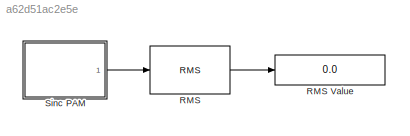
MODEL slx_a62d51ac2e5e
KIND model
BLOCK [Reference] RMS  REF=dspstat3/RMS
  InputProcessing = Elements as channels (sample based)
  Ports = [1, 1]
  SourceBlock = dspstat3/RMS
  SourceType = RMS
  UserDataPersistent = on
  dimension = 1
  directionMode = Each column
  reset_popup = None
  run = on
  treatSBRowAsCol = on
BLOCK [Display] RMS Value
  Decimation = 1
  Ports = [1]
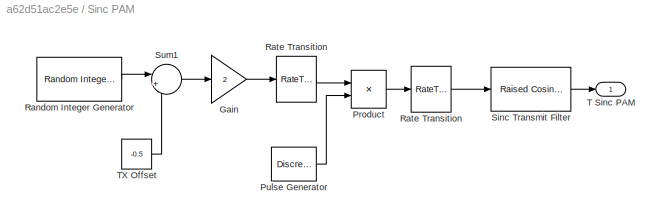
BLOCK [SubSystem] Sinc PAM
  Ports = [0, 1]
  RequestExecContextInheritance = off
BLOCK [RateTransition] Sinc PAM/ Rate Transition
  OutPortSampleTime = 1e-3
BLOCK [Gain] Sinc PAM/Gain
  Gain = 2
  OutDataTypeStr = Inherit: Inherit via internal rule
  ParamDataTypeStr = Inherit: Inherit via internal rule
  SaturateOnIntegerOverflow = off
BLOCK [Product] Sinc PAM/Product
  InputSameDT = off
  OutDataTypeStr = Inherit: Inherit via internal rule
  Ports = [2, 1]
  SaturateOnIntegerOverflow = off
BLOCK [DiscretePulseGenerator] Sinc PAM/Pulse Generator
  Period = 1e-3
  Ports = [0, 1]
  PulseType = Time based
  PulseWidth = 2
BLOCK [Reference] Sinc PAM/Random Integer Generator  REF=commrandsrc2/Random Integer
Generator
  Ports = [0, 1]
  SourceBlock = commrandsrc2/Random Integer\nGenerator
  SourceType = Random Integer Generator
  Ts = 1e-3
  frameBased = off
  mul = 2
  orient = off
  outDataType = double
  sampPerFrame = 50
  seed = randseed
BLOCK [RateTransition] Sinc PAM/Rate Transition
  OutPortSampleTime = 2e-5
BLOCK [Reference] Sinc PAM/Sinc Transmit Filter  REF=commfilt2/Raised Cosine
Transmit Filter
  D = 4
  InputProcessing = Inherited (this choice will be removed - see release notes)
  LockScale = off
  N = 50
  Ports = [1, 1]
  R = 0
  SourceBlock = commfilt2/Raised Cosine\nTransmit Filter
  SourceType = Raised Cosine Transmit Filter
  UserDataPersistent = on
  accumFracLength = 30
  accumMode = Inherit via internal rule
  accumWordLength = 32
  checkCoeff = off
  checkGain = User-specified
  coeffFracLength = 15
  coeffMode = Same word length as input
  coeffWordLength = 16
  currentFiltSpan = 2*(4)
  filtSpan = 2*(4)
  filtType = Normal
  filterGain = (5)*rcfiltgaincompat(gcbh)
  framing = Maintain input frame size
  launchFVT = off
  outputFracLength = 15
  outputMode = Same as accumulator
  outputWordLength = 16
  overflowMode = off
  prodOutputFracLength = 30
  prodOutputMode = Inherit via internal rule
  prodOutputWordLength = 32
  roundingMode = Floor
  sampMode = Mute
  saveAsFlag = 0
  variableName = rcTxFilt
BLOCK [Sum] Sinc PAM/Sum1
  IconShape = round
  InputSameDT = off
  Inputs = |++
  OutDataTypeStr = Inherit: Inherit via internal rule
  Ports = [2, 1]
  SaturateOnIntegerOverflow = off
BLOCK [Outport] Sinc PAM/T Sinc PAM
  IconDisplay = Port number
BLOCK [Constant] Sinc PAM/TX Offset
  Value = -0.5
LINE RMS:1 -> RMS Value:1
LINE Sinc PAM/ Rate Transition:1 -> Sinc PAM/Sinc Transmit Filter:1
LINE Sinc PAM/Gain:1 -> Sinc PAM/Rate Transition:1
LINE Sinc PAM/Product:1 -> Sinc PAM/ Rate Transition:1
LINE Sinc PAM/Pulse Generator:1 -> Sinc PAM/Product:2
LINE Sinc PAM/Random Integer Generator:1 -> Sinc PAM/Sum1:1
LINE Sinc PAM/Rate Transition:1 -> Sinc PAM/Product:1
LINE Sinc PAM/Sinc Transmit Filter:1 -> Sinc PAM/T Sinc PAM:1
LINE Sinc PAM/Sum1:1 -> Sinc PAM/Gain:1
LINE Sinc PAM/TX Offset:1 -> Sinc PAM/Sum1:2
LINE Sinc PAM:1 -> RMS:1
